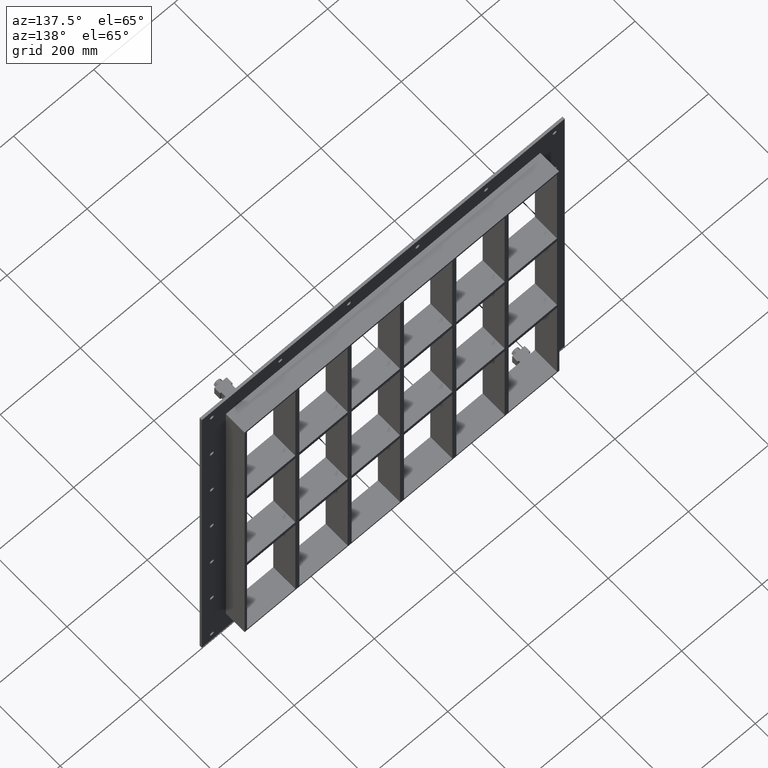
[diagram: clean part render]
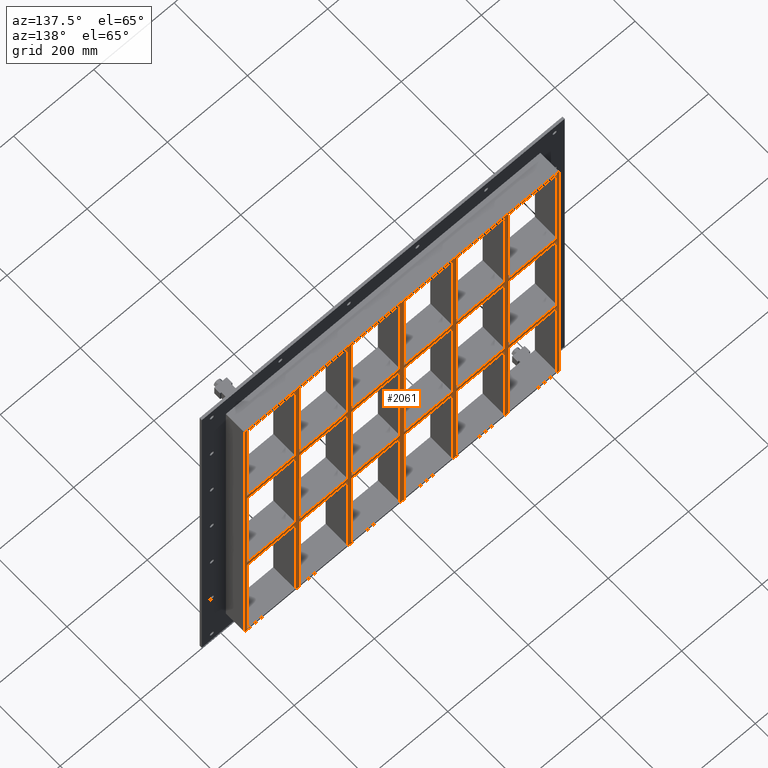
[diagram: same view with one face highlighted and labeled with its STEP entity id]
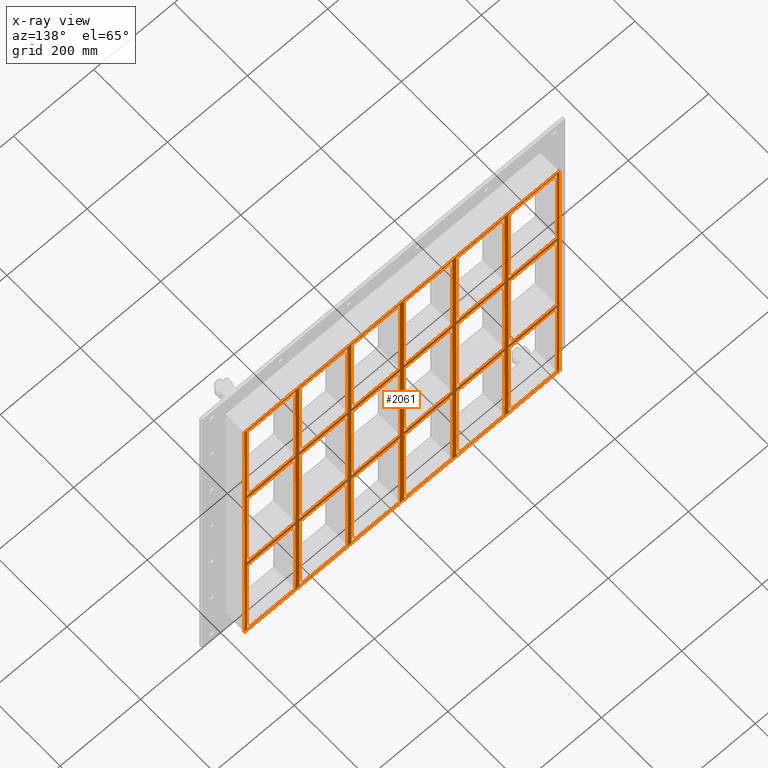
[diagram: x-ray of the same camera — body ghosted, the highlighted face saturated]
A machine part, auxiliary view. The second image highlights one B-rep face of the part: STEP entity #2061.
The next image is the same camera in x-ray: the body ghosted, the highlighted face saturated — about 0% of this face is hidden behind the body in this view.
In plain terms, the highlighted planar face has unit normal (0, 1, 0).
Its self-contained STEP definition (entity closure, byte-faithful):
#691=CARTESIAN_POINT('',(-266.00000000000017,57.0,138.99999999998855));
#692=VERTEX_POINT('',#691);
#707=CARTESIAN_POINT('',(-386.49999999999852,57.0,138.9999999999884));
#708=VERTEX_POINT('',#707);
#715=CARTESIAN_POINT('',(-266.00000000000023,57.0,138.99999999998852));
#716=DIRECTION('',(-1.0,0.0,0.0));
#717=VECTOR('',#716,120.49999999999829);
#718=LINE('',#715,#717);
#719=EDGE_CURVE('',#692,#708,#718,.T.);
#731=CARTESIAN_POINT('',(-135.50000000000017,57.0,138.99999999998863));
#732=VERTEX_POINT('',#731);
#747=CARTESIAN_POINT('',(-256.00000000000364,57.0,138.99999999998852));
#748=VERTEX_POINT('',#747);
#755=CARTESIAN_POINT('',(-135.50000000000023,57.0,138.99999999998863));
#756=DIRECTION('',(-1.0,0.0,0.0));
#757=VECTOR('',#756,120.50000000000341);
#758=LINE('',#755,#757);
#759=EDGE_CURVE('',#732,#748,#758,.T.);
#771=CARTESIAN_POINT('',(-5.000000000000213,57.0,138.99999999998875));
#772=VERTEX_POINT('',#771);
#787=CARTESIAN_POINT('',(-125.50000000000367,57.0,138.99999999998863));
#788=VERTEX_POINT('',#787);
#795=CARTESIAN_POINT('',(-5.000000000000227,57.0,138.99999999998875));
#796=DIRECTION('',(-1.0,0.0,0.0));
#797=VECTOR('',#796,120.50000000000341);
#798=LINE('',#795,#797);
#799=EDGE_CURVE('',#772,#788,#798,.T.);
#811=CARTESIAN_POINT('',(125.49999999999986,57.0,138.99999999998886));
#812=VERTEX_POINT('',#811);
#827=CARTESIAN_POINT('',(4.999999999996376,57.0,138.99999999998875));
#828=VERTEX_POINT('',#827);
#835=CARTESIAN_POINT('',(125.49999999999989,57.0,138.99999999998886));
#836=DIRECTION('',(-1.0,0.0,0.0));
#837=VECTOR('',#836,120.50000000000352);
#838=LINE('',#835,#837);
#839=EDGE_CURVE('',#812,#828,#838,.T.);
#849=CARTESIAN_POINT('',(265.99999999999642,57.0,138.99999999998897));
#850=VERTEX_POINT('',#849);
#859=CARTESIAN_POINT('',(386.49999999999636,57.0,138.99999999998909));
#860=VERTEX_POINT('',#859);
#861=CARTESIAN_POINT('',(386.49999999999636,57.0,138.99999999998909));
#862=DIRECTION('',(-1.0,0.0,0.0));
#863=VECTOR('',#862,120.49999999999994);
#864=LINE('',#861,#863);
#865=EDGE_CURVE('',#860,#850,#864,.T.);
#891=CARTESIAN_POINT('',(255.99999999999989,57.0,138.99999999998897));
#892=VERTEX_POINT('',#891);
#907=CARTESIAN_POINT('',(135.49999999999642,57.0,138.99999999998886));
#908=VERTEX_POINT('',#907);
#915=CARTESIAN_POINT('',(255.99999999999989,57.0,138.99999999998897));
#916=DIRECTION('',(-1.0,0.0,0.0));
#917=VECTOR('',#916,120.50000000000347);
#918=LINE('',#915,#917);
#919=EDGE_CURVE('',#892,#908,#918,.T.);
#929=CARTESIAN_POINT('',(-266.00000000000017,57.0,151.00000000000023));
#930=VERTEX_POINT('',#929);
#939=CARTESIAN_POINT('',(-386.49999999999852,57.0,151.00000000000023));
#940=VERTEX_POINT('',#939);
#941=CARTESIAN_POINT('',(-386.49999999999852,57.0,151.00000000000023));
#942=DIRECTION('',(1.0,0.0,0.0));
#943=VECTOR('',#942,120.49999999999829);
#944=LINE('',#941,#943);
#945=EDGE_CURVE('',#940,#930,#944,.T.);
#971=CARTESIAN_POINT('',(265.99999999999636,57.0,151.00000000000023));
#972=VERTEX_POINT('',#971);
#987=CARTESIAN_POINT('',(386.49999999999966,57.0,151.00000000000023));
#988=VERTEX_POINT('',#987);
#995=CARTESIAN_POINT('',(265.99999999999636,57.0,151.00000000000023));
#996=DIRECTION('',(1.0,0.0,0.0));
#997=VECTOR('',#996,120.5000000000033);
#998=LINE('',#995,#997);
#999=EDGE_CURVE('',#972,#988,#998,.T.);
#1009=CARTESIAN_POINT('',(-135.50000000000017,57.0,151.00000000000023));
#1010=VERTEX_POINT('',#1009);
#1019=CARTESIAN_POINT('',(-256.00000000000364,57.0,151.00000000000023));
#1020=VERTEX_POINT('',#1019);
#1021=CARTESIAN_POINT('',(-256.00000000000364,57.0,151.00000000000023));
#1022=DIRECTION('',(1.0,0.0,0.0));
#1023=VECTOR('',#1022,120.50000000000341);
#1024=LINE('',#1021,#1023);
#1025=EDGE_CURVE('',#1020,#1010,#1024,.T.);
#1049=CARTESIAN_POINT('',(-5.000000000000213,57.0,151.00000000000023));
#1050=VERTEX_POINT('',#1049);
#1059=CARTESIAN_POINT('',(-125.50000000000364,57.0,151.00000000000023));
#1060=VERTEX_POINT('',#1059);
#1061=CARTESIAN_POINT('',(-125.50000000000364,57.0,151.00000000000023));
#1062=DIRECTION('',(1.0,0.0,0.0));
#1063=VECTOR('',#1062,120.50000000000341);
#1064=LINE('',#1061,#1063);
#1065=EDGE_CURVE('',#1060,#1050,#1064,.T.);
#1089=CARTESIAN_POINT('',(125.49999999999983,57.0,151.00000000000023));
#1090=VERTEX_POINT('',#1089);
#1099=CARTESIAN_POINT('',(4.999999999996376,57.0,151.00000000000023));
#1100=VERTEX_POINT('',#1099);
#1101=CARTESIAN_POINT('',(4.999999999996362,57.0,151.00000000000023));
#1102=DIRECTION('',(1.0,0.0,0.0));
#1103=VECTOR('',#1102,120.50000000000341);
#1104=LINE('',#1101,#1103);
#1105=EDGE_CURVE('',#1100,#1090,#1104,.T.);
#1129=CARTESIAN_POINT('',(255.99999999999994,57.0,151.00000000000023));
#1130=VERTEX_POINT('',#1129);
#1139=CARTESIAN_POINT('',(135.49999999999642,57.0,151.00000000000023));
#1140=VERTEX_POINT('',#1139);
#1141=CARTESIAN_POINT('',(135.49999999999636,57.0,151.00000000000023));
#1142=DIRECTION('',(1.0,0.0,0.0));
#1143=VECTOR('',#1142,120.50000000000352);
#1144=LINE('',#1141,#1143);
#1145=EDGE_CURVE('',#1140,#1130,#1144,.T.);
#1170=CARTESIAN_POINT('',(-386.5,57.0,429.00000000000006));
#1171=VERTEX_POINT('',#1170);
#1172=CARTESIAN_POINT('',(-386.50000000000006,57.0,429.00000000000006));
#1173=DIRECTION('',(0.0,0.0,-1.0));
#1174=VECTOR('',#1173,277.99999999999989);
#1175=LINE('',#1172,#1174);
#1176=EDGE_CURVE('',#1171,#940,#1175,.T.);
#1201=CARTESIAN_POINT('',(386.49999999999966,57.0,-138.99999999999977));
#1202=VERTEX_POINT('',#1201);
#1203=CARTESIAN_POINT('',(386.50000000000011,57.0,-138.99999999999977));
#1204=DIRECTION('',(0.0,0.0,1.0));
#1205=VECTOR('',#1204,277.99999999998886);
#1206=LINE('',#1203,#1205);
#1207=EDGE_CURVE('',#1202,#860,#1206,.T.);
#1240=CARTESIAN_POINT('',(386.50000000000011,57.0,429.00000000000006));
#1241=VERTEX_POINT('',#1240);
#1248=CARTESIAN_POINT('',(386.50000000000011,57.0,151.00000000000023));
#1249=DIRECTION('',(0.0,0.0,1.0));
#1250=VECTOR('',#1249,277.99999999999983);
#1251=LINE('',#1248,#1250);
#1252=EDGE_CURVE('',#988,#1241,#1251,.T.);
#1271=CARTESIAN_POINT('',(255.99999999999983,57.0,429.00000000000006));
#1272=VERTEX_POINT('',#1271);
#1279=CARTESIAN_POINT('',(255.99999999999986,57.0,151.00000000000017));
#1280=DIRECTION('',(0.0,0.0,1.0));
#1281=VECTOR('',#1280,277.99999999999989);
#1282=LINE('',#1279,#1281);
#1283=EDGE_CURVE('',#1130,#1272,#1282,.T.);
#1294=CARTESIAN_POINT('',(265.99999999999642,57.0,429.00000000000006));
#1295=VERTEX_POINT('',#1294);
#1296=CARTESIAN_POINT('',(265.99999999999642,57.0,429.00000000000006));
#1297=DIRECTION('',(0.0,0.0,-1.0));
#1298=VECTOR('',#1297,277.99999999999983);
#1299=LINE('',#1296,#1298);
#1300=EDGE_CURVE('',#1295,#972,#1299,.T.);
#1333=CARTESIAN_POINT('',(125.49999999999983,57.0,429.00000000000006));
#1334=VERTEX_POINT('',#1333);
#1341=CARTESIAN_POINT('',(125.49999999999986,57.0,151.00000000000017));
#1342=DIRECTION('',(0.0,0.0,1.0));
#1343=VECTOR('',#1342,277.99999999999989);
#1344=LINE('',#1341,#1343);
#1345=EDGE_CURVE('',#1090,#1334,#1344,.T.);
#1356=CARTESIAN_POINT('',(135.49999999999642,57.0,429.00000000000006));
#1357=VERTEX_POINT('',#1356);
#1358=CARTESIAN_POINT('',(135.49999999999642,57.0,429.00000000000006));
#1359=DIRECTION('',(0.0,0.0,-1.0));
#1360=VECTOR('',#1359,277.99999999999983);
#1361=LINE('',#1358,#1360);
#1362=EDGE_CURVE('',#1357,#1140,#1361,.T.);
#1395=CARTESIAN_POINT('',(-5.000000000000213,57.0,429.00000000000006));
#1396=VERTEX_POINT('',#1395);
#1403=CARTESIAN_POINT('',(-5.00000000000019,57.0,151.00000000000017));
#1404=DIRECTION('',(0.0,0.0,1.0));
#1405=VECTOR('',#1404,277.99999999999989);
#1406=LINE('',#1403,#1405);
#1407=EDGE_CURVE('',#1050,#1396,#1406,.T.);
#1418=CARTESIAN_POINT('',(4.999999999996376,57.0,429.00000000000006));
#1419=VERTEX_POINT('',#1418);
#1420=CARTESIAN_POINT('',(4.999999999996376,57.0,429.00000000000006));
#1421=DIRECTION('',(0.0,0.0,-1.0));
#1422=VECTOR('',#1421,277.99999999999983);
#1423=LINE('',#1420,#1422);
#1424=EDGE_CURVE('',#1419,#1100,#1423,.T.);
#1457=CARTESIAN_POINT('',(-135.50000000000023,57.0,429.00000000000006));
#1458=VERTEX_POINT('',#1457);
#1465=CARTESIAN_POINT('',(-135.5000000000002,57.0,151.00000000000017));
#1466=DIRECTION('',(0.0,0.0,1.0));
#1467=VECTOR('',#1466,277.99999999999989);
#1468=LINE('',#1465,#1467);
#1469=EDGE_CURVE('',#1010,#1458,#1468,.T.);
#1480=CARTESIAN_POINT('',(-125.50000000000364,57.0,429.00000000000006));
#1481=VERTEX_POINT('',#1480);
#1482=CARTESIAN_POINT('',(-125.50000000000364,57.0,429.00000000000006));
#1483=DIRECTION('',(0.0,0.0,-1.0));
#1484=VECTOR('',#1483,277.99999999999983);
#1485=LINE('',#1482,#1484);
#1486=EDGE_CURVE('',#1481,#1060,#1485,.T.);
#1519=CARTESIAN_POINT('',(-266.00000000000023,57.0,429.00000000000006));
#1520=VERTEX_POINT('',#1519);
#1527=CARTESIAN_POINT('',(-266.00000000000023,57.0,151.00000000000017));
#1528=DIRECTION('',(0.0,0.0,1.0));
#1529=VECTOR('',#1528,277.99999999999989);
#1530=LINE('',#1527,#1529);
#1531=EDGE_CURVE('',#930,#1520,#1530,.T.);
#1542=CARTESIAN_POINT('',(-266.00000000000017,57.0,-138.99999999999977));
#1543=VERTEX_POINT('',#1542);
#1544=CARTESIAN_POINT('',(-266.00000000000017,57.0,-138.99999999999977));
#1545=DIRECTION('',(0.0,0.0,1.0));
#1546=VECTOR('',#1545,277.99999999998835);
#1547=LINE('',#1544,#1546);
#1548=EDGE_CURVE('',#1543,#692,#1547,.T.);
#1573=CARTESIAN_POINT('',(-256.00000000000364,57.0,429.00000000000006));
#1574=VERTEX_POINT('',#1573);
#1575=CARTESIAN_POINT('',(-256.00000000000364,57.0,429.00000000000006));
#1576=DIRECTION('',(0.0,0.0,-1.0));
#1577=VECTOR('',#1576,277.99999999999983);
#1578=LINE('',#1575,#1577);
#1579=EDGE_CURVE('',#1574,#1020,#1578,.T.);
#1598=CARTESIAN_POINT('',(2.903351E-014,57.0,-6.182366E-014));
#1599=DIRECTION('',(0.0,1.0,0.0));
#1600=DIRECTION('',(0.0,0.0,1.0));
#1601=AXIS2_PLACEMENT_3D('',#1598,#1599,#1600);
#1602=PLANE('',#1601);
#1603=CARTESIAN_POINT('',(-392.50000000000006,57.0,-433.00000000000011));
#1604=VERTEX_POINT('',#1603);
#1605=CARTESIAN_POINT('',(392.50000000000011,57.0,-433.00000000000011));
#1606=VERTEX_POINT('',#1605);
#1607=CARTESIAN_POINT('',(-392.50000000000006,57.0,-433.00000000000011));
#1608=DIRECTION('',(1.0,0.0,0.0));
#1609=VECTOR('',#1608,785.00000000000023);
#1610=LINE('',#1607,#1609);
#1611=EDGE_CURVE('',#1604,#1606,#1610,.T.);
#1612=ORIENTED_EDGE('',*,*,#1611,.F.);
#1613=CARTESIAN_POINT('',(-392.50000000000006,57.0,433.0));
#1614=VERTEX_POINT('',#1613);
#1615=CARTESIAN_POINT('',(-392.50000000000006,57.0,-433.00000000000011));
#1616=DIRECTION('',(0.0,0.0,1.0));
#1617=VECTOR('',#1616,866.00000000000011);
#1618=LINE('',#1615,#1617);
#1619=EDGE_CURVE('',#1604,#1614,#1618,.T.);
#1620=ORIENTED_EDGE('',*,*,#1619,.T.);
#1621=CARTESIAN_POINT('',(-390.50000000000006,57.0,435.0));
#1622=VERTEX_POINT('',#1621);
#1623=CARTESIAN_POINT('',(-390.50000000000006,57.0,433.0));
#1624=DIRECTION('',(0.0,-1.0,0.0));
#1625=DIRECTION('',(-0.707106781186548,0.0,0.707106781186548));
#1626=AXIS2_PLACEMENT_3D('',#1623,#1624,#1625);
#1627=CIRCLE('',#1626,2.0);
#1628=EDGE_CURVE('',#1622,#1614,#1627,.T.);
#1629=ORIENTED_EDGE('',*,*,#1628,.F.);
#1630=CARTESIAN_POINT('',(390.50000000000011,57.0,435.0));
#1631=VERTEX_POINT('',#1630);
#1632=CARTESIAN_POINT('',(-390.5,57.0,435.0));
#1633=DIRECTION('',(1.0,0.0,0.0));
#1634=VECTOR('',#1633,781.00000000000011);
#1635=LINE('',#1632,#1634);
#1636=EDGE_CURVE('',#1622,#1631,#1635,.T.);
#1637=ORIENTED_EDGE('',*,*,#1636,.T.);
#1638=CARTESIAN_POINT('',(392.50000000000011,57.0,433.0));
#1639=VERTEX_POINT('',#1638);
#1640=CARTESIAN_POINT('',(390.50000000000011,57.0,433.0));
#1641=DIRECTION('',(0.0,-1.0,0.0));
#1642=DIRECTION('',(0.707106781186548,0.0,0.707106781186548));
#1643=AXIS2_PLACEMENT_3D('',#1640,#1641,#1642);
#1644=CIRCLE('',#1643,2.0);
#1645=EDGE_CURVE('',#1639,#1631,#1644,.T.);
#1646=ORIENTED_EDGE('',*,*,#1645,.F.);
#1647=CARTESIAN_POINT('',(392.50000000000011,57.0,433.0));
#1648=DIRECTION('',(0.0,0.0,-1.0));
#1649=VECTOR('',#1648,866.00000000000011);
#1650=LINE('',#1647,#1649);
#1651=EDGE_CURVE('',#1639,#1606,#1650,.T.);
#1652=ORIENTED_EDGE('',*,*,#1651,.T.);
#1653=EDGE_LOOP('',(#1612,#1620,#1629,#1637,#1646,#1652));
#1654=FACE_OUTER_BOUND('',#1653,.T.);
#1655=CARTESIAN_POINT('',(-386.49999999999852,57.0,-138.99999999999977));
#1656=VERTEX_POINT('',#1655);
#1657=CARTESIAN_POINT('',(-386.50000000000006,57.0,138.99999999998835));
#1658=DIRECTION('',(0.0,0.0,-1.0));
#1659=VECTOR('',#1658,277.99999999998812);
#1660=LINE('',#1657,#1659);
#1661=EDGE_CURVE('',#708,#1656,#1660,.T.);
#1662=ORIENTED_EDGE('',*,*,#1661,.T.);
#1663=CARTESIAN_POINT('',(-386.49999999999852,57.0,-138.99999999999977));
#1664=DIRECTION('',(1.0,0.0,0.0));
#1665=VECTOR('',#1664,120.49999999999835);
#1666=LINE('',#1663,#1665);
#1667=EDGE_CURVE('',#1656,#1543,#1666,.T.);
#1668=ORIENTED_EDGE('',*,*,#1667,.T.);
#1669=ORIENTED_EDGE('',*,*,#1548,.T.);
#1670=ORIENTED_EDGE('',*,*,#719,.T.);
#1671=EDGE_LOOP('',(#1662,#1668,#1669,#1670));
#1672=FACE_BOUND('',#1671,.T.);
#1673=ORIENTED_EDGE('',*,*,#1252,.T.);
#1674=CARTESIAN_POINT('',(386.50000000000011,57.0,429.00000000000006));
#1675=DIRECTION('',(-1.0,0.0,0.0));
#1676=VECTOR('',#1675,120.50000000000375);
#1677=LINE('',#1674,#1676);
#1678=EDGE_CURVE('',#1241,#1295,#1677,.T.);
#1679=ORIENTED_EDGE('',*,*,#1678,.T.);
#1680=ORIENTED_EDGE('',*,*,#1300,.T.);
#1681=ORIENTED_EDGE('',*,*,#999,.T.);
#1682=EDGE_LOOP('',(#1673,#1679,#1680,#1681));
#1683=FACE_BOUND('',#1682,.T.);
#1684=ORIENTED_EDGE('',*,*,#1283,.T.);
#1685=CARTESIAN_POINT('',(255.9999999999998,57.0,429.00000000000006));
#1686=DIRECTION('',(-1.0,0.0,0.0));
#1687=VECTOR('',#1686,120.50000000000335);
#1688=LINE('',#1685,#1687);
#1689=EDGE_CURVE('',#1272,#1357,#1688,.T.);
#1690=ORIENTED_EDGE('',*,*,#1689,.T.);
#1691=ORIENTED_EDGE('',*,*,#1362,.T.);
#1692=ORIENTED_EDGE('',*,*,#1145,.T.);
#1693=EDGE_LOOP('',(#1684,#1690,#1691,#1692));
#1694=FACE_BOUND('',#1693,.T.);
#1695=ORIENTED_EDGE('',*,*,#1345,.T.);
#1696=CARTESIAN_POINT('',(125.49999999999986,57.0,429.00000000000006));
#1697=DIRECTION('',(-1.0,0.0,0.0));
#1698=VECTOR('',#1697,120.50000000000347);
#1699=LINE('',#1696,#1698);
#1700=EDGE_CURVE('',#1334,#1419,#1699,.T.);
#1701=ORIENTED_EDGE('',*,*,#1700,.T.);
#1702=ORIENTED_EDGE('',*,*,#1424,.T.);
#1703=ORIENTED_EDGE('',*,*,#1105,.T.);
#1704=EDGE_LOOP('',(#1695,#1701,#1702,#1703));
#1705=FACE_BOUND('',#1704,.T.);
#1706=ORIENTED_EDGE('',*,*,#1407,.T.);
#1707=CARTESIAN_POINT('',(-5.000000000000199,57.0,429.00000000000006));
#1708=DIRECTION('',(-1.0,0.0,0.0));
#1709=VECTOR('',#1708,120.50000000000344);
#1710=LINE('',#1707,#1709);
#1711=EDGE_CURVE('',#1396,#1481,#1710,.T.);
#1712=ORIENTED_EDGE('',*,*,#1711,.T.);
#1713=ORIENTED_EDGE('',*,*,#1486,.T.);
#1714=ORIENTED_EDGE('',*,*,#1065,.T.);
#1715=EDGE_LOOP('',(#1706,#1712,#1713,#1714));
#1716=FACE_BOUND('',#1715,.T.);
#1717=ORIENTED_EDGE('',*,*,#1469,.T.);
#1718=CARTESIAN_POINT('',(-135.50000000000023,57.0,429.00000000000006));
#1719=DIRECTION('',(-1.0,0.0,0.0));
#1720=VECTOR('',#1719,120.50000000000341);
#1721=LINE('',#1718,#1720);
#1722=EDGE_CURVE('',#1458,#1574,#1721,.T.);
#1723=ORIENTED_EDGE('',*,*,#1722,.T.);
#1724=ORIENTED_EDGE('',*,*,#1579,.T.);
#1725=ORIENTED_EDGE('',*,*,#1025,.T.);
#1726=EDGE_LOOP('',(#1717,#1723,#1724,#1725));
#1727=FACE_BOUND('',#1726,.T.);
#1728=ORIENTED_EDGE('',*,*,#865,.T.);
#1729=CARTESIAN_POINT('',(265.99999999999642,57.0,-138.99999999999977));
#1730=VERTEX_POINT('',#1729);
#1731=CARTESIAN_POINT('',(265.99999999999642,57.0,138.99999999998897));
#1732=DIRECTION('',(0.0,0.0,-1.0));
#1733=VECTOR('',#1732,277.99999999998869);
#1734=LINE('',#1731,#1733);
#1735=EDGE_CURVE('',#850,#1730,#1734,.T.);
#1736=ORIENTED_EDGE('',*,*,#1735,.T.);
#1737=CARTESIAN_POINT('',(265.99999999999636,57.0,-138.99999999999977));
#1738=DIRECTION('',(1.0,0.0,0.0));
#1739=VECTOR('',#1738,120.5000000000033);
#1740=LINE('',#1737,#1739);
#1741=EDGE_CURVE('',#1730,#1202,#1740,.T.);
#1742=ORIENTED_EDGE('',*,*,#1741,.T.);
#1743=ORIENTED_EDGE('',*,*,#1207,.T.);
#1744=EDGE_LOOP('',(#1728,#1736,#1742,#1743));
#1745=FACE_BOUND('',#1744,.T.);
#1746=ORIENTED_EDGE('',*,*,#919,.T.);
#1747=CARTESIAN_POINT('',(135.49999999999642,57.0,-138.99999999999977));
#1748=VERTEX_POINT('',#1747);
#1749=CARTESIAN_POINT('',(135.49999999999642,57.0,138.99999999998886));
#1750=DIRECTION('',(0.0,0.0,-1.0));
#1751=VECTOR('',#1750,277.99999999998857);
#1752=LINE('',#1749,#1751);
#1753=EDGE_CURVE('',#908,#1748,#1752,.T.);
#1754=ORIENTED_EDGE('',*,*,#1753,.T.);
#1755=CARTESIAN_POINT('',(255.99999999999989,57.0,-138.99999999999977));
#1756=VERTEX_POINT('',#1755);
#1757=CARTESIAN_POINT('',(135.49999999999636,57.0,-138.99999999999977));
#1758=DIRECTION('',(1.0,0.0,0.0));
#1759=VECTOR('',#1758,120.50000000000341);
#1760=LINE('',#1757,#1759);
#1761=EDGE_CURVE('',#1748,#1756,#1760,.T.);
#1762=ORIENTED_EDGE('',*,*,#1761,.T.);
#1763=CARTESIAN_POINT('',(255.99999999999989,57.0,-138.99999999999977));
#1764=DIRECTION('',(0.0,0.0,1.0));
#1765=VECTOR('',#1764,277.9999999999888);
#1766=LINE('',#1763,#1765);
#1767=EDGE_CURVE('',#1756,#892,#1766,.T.);
#1768=ORIENTED_EDGE('',*,*,#1767,.T.);
#1769=EDGE_LOOP('',(#1746,#1754,#1762,#1768));
#1770=FACE_BOUND('',#1769,.T.);
#1771=ORIENTED_EDGE('',*,*,#839,.T.);
#1772=CARTESIAN_POINT('',(4.999999999996376,57.0,-138.99999999999977));
#1773=VERTEX_POINT('',#1772);
#1774=CARTESIAN_POINT('',(4.999999999996376,57.0,138.99999999998875));
#1775=DIRECTION('',(0.0,0.0,-1.0));
#1776=VECTOR('',#1775,277.99999999998846);
#1777=LINE('',#1774,#1776);
#1778=EDGE_CURVE('',#828,#1773,#1777,.T.);
#1779=ORIENTED_EDGE('',*,*,#1778,.T.);
#1780=CARTESIAN_POINT('',(125.49999999999989,57.0,-138.99999999999977));
#1781=VERTEX_POINT('',#1780);
#1782=CARTESIAN_POINT('',(4.999999999996362,57.0,-138.99999999999977));
#1783=DIRECTION('',(1.0,0.0,0.0));
#1784=VECTOR('',#1783,120.50000000000352);
#1785=LINE('',#1782,#1784);
#1786=EDGE_CURVE('',#1773,#1781,#1785,.T.);
#1787=ORIENTED_EDGE('',*,*,#1786,.T.);
#1788=CARTESIAN_POINT('',(125.49999999999987,57.0,-138.99999999999977));
#1789=DIRECTION('',(0.0,0.0,1.0));
#1790=VECTOR('',#1789,277.99999999998857);
#1791=LINE('',#1788,#1790);
#1792=EDGE_CURVE('',#1781,#812,#1791,.T.);
#1793=ORIENTED_EDGE('',*,*,#1792,.T.);
#1794=EDGE_LOOP('',(#1771,#1779,#1787,#1793));
#1795=FACE_BOUND('',#1794,.T.);
#1796=ORIENTED_EDGE('',*,*,#799,.T.);
#1797=CARTESIAN_POINT('',(-125.50000000000364,57.0,-138.99999999999977));
#1798=VERTEX_POINT('',#1797);
#1799=CARTESIAN_POINT('',(-125.50000000000364,57.0,138.99999999998863));
#1800=DIRECTION('',(0.0,0.0,-1.0));
#1801=VECTOR('',#1800,277.99999999998835);
#1802=LINE('',#1799,#1801);
#1803=EDGE_CURVE('',#788,#1798,#1802,.T.);
#1804=ORIENTED_EDGE('',*,*,#1803,.T.);
#1805=CARTESIAN_POINT('',(-5.000000000000167,57.0,-138.99999999999977));
#1806=VERTEX_POINT('',#1805);
#1807=CARTESIAN_POINT('',(-125.50000000000364,57.0,-138.99999999999977));
#1808=DIRECTION('',(1.0,0.0,0.0));
#1809=VECTOR('',#1808,120.50000000000347);
#1810=LINE('',#1807,#1809);
#1811=EDGE_CURVE('',#1798,#1806,#1810,.T.);
#1812=ORIENTED_EDGE('',*,*,#1811,.T.);
#1813=CARTESIAN_POINT('',(-5.000000000000166,57.0,-138.99999999999977));
#1814=DIRECTION('',(0.0,0.0,1.0));
#1815=VECTOR('',#1814,277.99999999998857);
#1816=LINE('',#1813,#1815);
#1817=EDGE_CURVE('',#1806,#772,#1816,.T.);
#1818=ORIENTED_EDGE('',*,*,#1817,.T.);
#1819=EDGE_LOOP('',(#1796,#1804,#1812,#1818));
#1820=FACE_BOUND('',#1819,.T.);
#1821=ORIENTED_EDGE('',*,*,#759,.T.);
#1822=CARTESIAN_POINT('',(-256.00000000000364,57.0,-138.99999999999977));
#1823=VERTEX_POINT('',#1822);
#1824=CARTESIAN_POINT('',(-256.00000000000364,57.0,138.99999999998852));
#1825=DIRECTION('',(0.0,0.0,-1.0));
#1826=VECTOR('',#1825,277.99999999998823);
#1827=LINE('',#1824,#1826);
#1828=EDGE_CURVE('',#748,#1823,#1827,.T.);
#1829=ORIENTED_EDGE('',*,*,#1828,.T.);
#1830=CARTESIAN_POINT('',(-135.50000000000017,57.0,-138.99999999999977));
#1831=VERTEX_POINT('',#1830);
#1832=CARTESIAN_POINT('',(-256.00000000000364,57.0,-138.99999999999977));
#1833=DIRECTION('',(1.0,0.0,0.0));
#1834=VECTOR('',#1833,120.50000000000341);
#1835=LINE('',#1832,#1834);
#1836=EDGE_CURVE('',#1823,#1831,#1835,.T.);
#1837=ORIENTED_EDGE('',*,*,#1836,.T.);
#1838=CARTESIAN_POINT('',(-135.50000000000017,57.0,-138.99999999999977));
#1839=DIRECTION('',(0.0,0.0,1.0));
#1840=VECTOR('',#1839,277.99999999998835);
#1841=LINE('',#1838,#1840);
#1842=EDGE_CURVE('',#1831,#732,#1841,.T.);
#1843=ORIENTED_EDGE('',*,*,#1842,.T.);
#1844=EDGE_LOOP('',(#1821,#1829,#1837,#1843));
#1845=FACE_BOUND('',#1844,.T.);
#1846=CARTESIAN_POINT('',(-386.49999999999852,57.0,-151.0000000000116));
#1847=VERTEX_POINT('',#1846);
#1848=CARTESIAN_POINT('',(-386.5,57.0,-429.00000000000006));
#1849=VERTEX_POINT('',#1848);
#1850=CARTESIAN_POINT('',(-386.50000000000006,57.0,-151.0000000000116));
#1851=DIRECTION('',(0.0,0.0,-1.0));
#1852=VECTOR('',#1851,277.99999999998846);
#1853=LINE('',#1850,#1852);
#1854=EDGE_CURVE('',#1847,#1849,#1853,.T.);
#1855=ORIENTED_EDGE('',*,*,#1854,.T.);
#1856=CARTESIAN_POINT('',(-266.00000000000017,57.0,-429.00000000000006));
#1857=VERTEX_POINT('',#1856);
#1858=CARTESIAN_POINT('',(-386.50000000000006,57.0,-429.00000000000006));
#1859=DIRECTION('',(1.0,0.0,0.0));
#1860=VECTOR('',#1859,120.49999999999989);
#1861=LINE('',#1858,#1860);
#1862=EDGE_CURVE('',#1849,#1857,#1861,.T.);
#1863=ORIENTED_EDGE('',*,*,#1862,.T.);
#1864=CARTESIAN_POINT('',(-266.00000000000023,57.0,-151.00000000001148));
#1865=VERTEX_POINT('',#1864);
#1866=CARTESIAN_POINT('',(-266.00000000000017,57.0,-429.00000000000006));
#1867=DIRECTION('',(0.0,0.0,1.0));
#1868=VECTOR('',#1867,277.99999999998857);
#1869=LINE('',#1866,#1868);
#1870=EDGE_CURVE('',#1857,#1865,#1869,.T.);
#1871=ORIENTED_EDGE('',*,*,#1870,.T.);
#1872=CARTESIAN_POINT('',(-266.00000000000023,57.0,-151.00000000001148));
#1873=DIRECTION('',(-1.0,0.0,0.0));
#1874=VECTOR('',#1873,120.49999999999829);
#1875=LINE('',#1872,#1874);
#1876=EDGE_CURVE('',#1865,#1847,#1875,.T.);
#1877=ORIENTED_EDGE('',*,*,#1876,.T.);
#1878=EDGE_LOOP('',(#1855,#1863,#1871,#1877));
#1879=FACE_BOUND('',#1878,.T.);
#1880=CARTESIAN_POINT('',(-135.50000000000014,57.0,-429.00000000000006));
#1881=VERTEX_POINT('',#1880);
#1882=CARTESIAN_POINT('',(-135.50000000000017,57.0,-151.00000000001137));
#1883=VERTEX_POINT('',#1882);
#1884=CARTESIAN_POINT('',(-135.50000000000014,57.0,-429.00000000000006));
#1885=DIRECTION('',(0.0,0.0,1.0));
#1886=VECTOR('',#1885,277.99999999998869);
#1887=LINE('',#1884,#1886);
#1888=EDGE_CURVE('',#1881,#1883,#1887,.T.);
#1889=ORIENTED_EDGE('',*,*,#1888,.T.);
#1890=CARTESIAN_POINT('',(-256.00000000000364,57.0,-151.00000000001148));
#1891=VERTEX_POINT('',#1890);
#1892=CARTESIAN_POINT('',(-135.50000000000023,57.0,-151.00000000001137));
#1893=DIRECTION('',(-1.0,0.0,0.0));
#1894=VECTOR('',#1893,120.50000000000341);
#1895=LINE('',#1892,#1894);
#1896=EDGE_CURVE('',#1883,#1891,#1895,.T.);
#1897=ORIENTED_EDGE('',*,*,#1896,.T.);
#1898=CARTESIAN_POINT('',(-256.00000000000364,57.0,-428.99999999998187));
#1899=VERTEX_POINT('',#1898);
#1900=CARTESIAN_POINT('',(-256.00000000000364,57.0,-151.00000000001143));
#1901=DIRECTION('',(0.0,0.0,-1.0));
#1902=VECTOR('',#1901,277.99999999997044);
#1903=LINE('',#1900,#1902);
#1904=EDGE_CURVE('',#1891,#1899,#1903,.T.);
#1905=ORIENTED_EDGE('',*,*,#1904,.T.);
#1906=CARTESIAN_POINT('',(-256.00000000000358,57.0,-429.00000000000006));
#1907=DIRECTION('',(1.0,0.0,0.0));
#1908=VECTOR('',#1907,120.50000000000341);
#1909=LINE('',#1906,#1908);
#1910=EDGE_CURVE('',#1899,#1881,#1909,.T.);
#1911=ORIENTED_EDGE('',*,*,#1910,.T.);
#1912=EDGE_LOOP('',(#1889,#1897,#1905,#1911));
#1913=FACE_BOUND('',#1912,.T.);
#1914=CARTESIAN_POINT('',(-5.000000000000142,57.0,-429.00000000000006));
#1915=VERTEX_POINT('',#1914);
#1916=CARTESIAN_POINT('',(-5.000000000000165,57.0,-151.00000000001128));
#1917=VERTEX_POINT('',#1916);
#1918=CARTESIAN_POINT('',(-5.000000000000142,57.0,-429.00000000000006));
#1919=DIRECTION('',(0.0,0.0,1.0));
#1920=VECTOR('',#1919,277.9999999999888);
#1921=LINE('',#1918,#1920);
#1922=EDGE_CURVE('',#1915,#1917,#1921,.T.);
#1923=ORIENTED_EDGE('',*,*,#1922,.T.);
#1924=CARTESIAN_POINT('',(-125.50000000000364,57.0,-151.00000000001131));
#1925=VERTEX_POINT('',#1924);
#1926=CARTESIAN_POINT('',(-5.000000000000114,57.0,-151.00000000001125));
#1927=DIRECTION('',(-1.0,0.0,0.0));
#1928=VECTOR('',#1927,120.50000000000352);
#1929=LINE('',#1926,#1928);
#1930=EDGE_CURVE('',#1917,#1925,#1929,.T.);
#1931=ORIENTED_EDGE('',*,*,#1930,.T.);
#1932=CARTESIAN_POINT('',(-125.50000000000364,57.0,-428.99999999998187));
#1933=VERTEX_POINT('',#1932);
#1934=CARTESIAN_POINT('',(-125.50000000000364,57.0,-151.00000000001131));
#1935=DIRECTION('',(0.0,0.0,-1.0));
#1936=VECTOR('',#1935,277.99999999997056);
#1937=LINE('',#1934,#1936);
#1938=EDGE_CURVE('',#1925,#1933,#1937,.T.);
#1939=ORIENTED_EDGE('',*,*,#1938,.T.);
#1940=CARTESIAN_POINT('',(-125.50000000000364,57.0,-429.00000000000006));
#1941=DIRECTION('',(1.0,0.0,0.0));
#1942=VECTOR('',#1941,120.5000000000035);
#1943=LINE('',#1940,#1942);
#1944=EDGE_CURVE('',#1933,#1915,#1943,.T.);
#1945=ORIENTED_EDGE('',*,*,#1944,.T.);
#1946=EDGE_LOOP('',(#1923,#1931,#1939,#1945));
#1947=FACE_BOUND('',#1946,.T.);
#1948=CARTESIAN_POINT('',(125.4999999999999,57.0,-429.00000000000006));
#1949=VERTEX_POINT('',#1948);
#1950=CARTESIAN_POINT('',(125.49999999999989,57.0,-151.00000000001114));
#1951=VERTEX_POINT('',#1950);
#1952=CARTESIAN_POINT('',(125.4999999999999,57.0,-429.00000000000006));
#1953=DIRECTION('',(0.0,0.0,1.0));
#1954=VECTOR('',#1953,277.99999999998892);
#1955=LINE('',#1952,#1954);
#1956=EDGE_CURVE('',#1949,#1951,#1955,.T.);
#1957=ORIENTED_EDGE('',*,*,#1956,.T.);
#1958=CARTESIAN_POINT('',(4.999999999996376,57.0,-151.00000000001125));
#1959=VERTEX_POINT('',#1958);
#1960=CARTESIAN_POINT('',(125.49999999999989,57.0,-151.00000000001114));
#1961=DIRECTION('',(-1.0,0.0,0.0));
#1962=VECTOR('',#1961,120.50000000000352);
#1963=LINE('',#1960,#1962);
#1964=EDGE_CURVE('',#1951,#1959,#1963,.T.);
#1965=ORIENTED_EDGE('',*,*,#1964,.T.);
#1966=CARTESIAN_POINT('',(4.999999999996376,57.0,-428.99999999998187));
#1967=VERTEX_POINT('',#1966);
#1968=CARTESIAN_POINT('',(4.999999999996376,57.0,-151.0000000000112));
#1969=DIRECTION('',(0.0,0.0,-1.0));
#1970=VECTOR('',#1969,277.99999999997067);
#1971=LINE('',#1968,#1970);
#1972=EDGE_CURVE('',#1959,#1967,#1971,.T.);
#1973=ORIENTED_EDGE('',*,*,#1972,.T.);
#1974=CARTESIAN_POINT('',(4.999999999996362,57.0,-429.00000000000006));
#1975=DIRECTION('',(1.0,0.0,0.0));
#1976=VECTOR('',#1975,120.50000000000352);
#1977=LINE('',#1974,#1976);
#1978=EDGE_CURVE('',#1967,#1949,#1977,.T.);
#1979=ORIENTED_EDGE('',*,*,#1978,.T.);
#1980=EDGE_LOOP('',(#1957,#1965,#1973,#1979));
#1981=FACE_BOUND('',#1980,.T.);
#1982=CARTESIAN_POINT('',(255.99999999999991,57.0,-429.00000000000006));
#1983=VERTEX_POINT('',#1982);
#1984=CARTESIAN_POINT('',(255.99999999999989,57.0,-151.00000000001103));
#1985=VERTEX_POINT('',#1984);
#1986=CARTESIAN_POINT('',(255.99999999999991,57.0,-429.00000000000006));
#1987=DIRECTION('',(0.0,0.0,1.0));
#1988=VECTOR('',#1987,277.99999999998903);
#1989=LINE('',#1986,#1988);
#1990=EDGE_CURVE('',#1983,#1985,#1989,.T.);
#1991=ORIENTED_EDGE('',*,*,#1990,.T.);
#1992=CARTESIAN_POINT('',(135.49999999999642,57.0,-151.00000000001108));
#1993=VERTEX_POINT('',#1992);
#1994=CARTESIAN_POINT('',(255.99999999999989,57.0,-151.00000000001103));
#1995=DIRECTION('',(-1.0,0.0,0.0));
#1996=VECTOR('',#1995,120.50000000000347);
#1997=LINE('',#1994,#1996);
#1998=EDGE_CURVE('',#1985,#1993,#1997,.T.);
#1999=ORIENTED_EDGE('',*,*,#1998,.T.);
#2000=CARTESIAN_POINT('',(135.49999999999642,57.0,-428.99999999998187));
#2001=VERTEX_POINT('',#2000);
#2002=CARTESIAN_POINT('',(135.49999999999642,57.0,-151.00000000001108));
#2003=DIRECTION('',(0.0,0.0,-1.0));
#2004=VECTOR('',#2003,277.99999999997078);
#2005=LINE('',#2002,#2004);
#2006=EDGE_CURVE('',#1993,#2001,#2005,.T.);
#2007=ORIENTED_EDGE('',*,*,#2006,.T.);
#2008=CARTESIAN_POINT('',(135.49999999999642,57.0,-429.00000000000006));
#2009=DIRECTION('',(1.0,0.0,0.0));
#2010=VECTOR('',#2009,120.50000000000347);
#2011=LINE('',#2008,#2010);
#2012=EDGE_CURVE('',#2001,#1983,#2011,.T.);
#2013=ORIENTED_EDGE('',*,*,#2012,.T.);
#2014=EDGE_LOOP('',(#1991,#1999,#2007,#2013));
#2015=FACE_BOUND('',#2014,.T.);
#2016=ORIENTED_EDGE('',*,*,#945,.T.);
#2017=ORIENTED_EDGE('',*,*,#1531,.T.);
#2018=CARTESIAN_POINT('',(-266.00000000000023,57.0,429.00000000000006));
#2019=DIRECTION('',(-1.0,0.0,0.0));
#2020=VECTOR('',#2019,120.49999999999977);
#2021=LINE('',#2018,#2020);
#2022=EDGE_CURVE('',#1520,#1171,#2021,.T.);
#2023=ORIENTED_EDGE('',*,*,#2022,.T.);
#2024=ORIENTED_EDGE('',*,*,#1176,.T.);
#2025=EDGE_LOOP('',(#2016,#2017,#2023,#2024));
#2026=FACE_BOUND('',#2025,.T.);
#2027=CARTESIAN_POINT('',(265.99999999999642,57.0,-428.99999999998187));
#2028=VERTEX_POINT('',#2027);
#2029=CARTESIAN_POINT('',(386.50000000000011,57.0,-429.00000000000006));
#2030=VERTEX_POINT('',#2029);
#2031=CARTESIAN_POINT('',(265.99999999999642,57.0,-429.00000000000006));
#2032=DIRECTION('',(1.0,0.0,0.0));
#2033=VECTOR('',#2032,120.50000000000369);
#2034=LINE('',#2031,#2033);
#2035=EDGE_CURVE('',#2028,#2030,#2034,.T.);
#2036=ORIENTED_EDGE('',*,*,#2035,.T.);
#2037=CARTESIAN_POINT('',(386.49999999999636,57.0,-151.00000000001091));
#2038=VERTEX_POINT('',#2037);
#2039=CARTESIAN_POINT('',(386.50000000000011,57.0,-429.00000000000011));
#2040=DIRECTION('',(0.0,0.0,1.0));
#2041=VECTOR('',#2040,277.9999999999892);
#2042=LINE('',#2039,#2041);
#2043=EDGE_CURVE('',#2030,#2038,#2042,.T.);
#2044=ORIENTED_EDGE('',*,*,#2043,.T.);
#2045=CARTESIAN_POINT('',(265.99999999999642,57.0,-151.00000000001097));
#2046=VERTEX_POINT('',#2045);
#2047=CARTESIAN_POINT('',(386.49999999999636,57.0,-151.00000000001091));
#2048=DIRECTION('',(-1.0,0.0,0.0));
#2049=VECTOR('',#2048,120.49999999999994);
#2050=LINE('',#2047,#2049);
#2051=EDGE_CURVE('',#2038,#2046,#2050,.T.);
#2052=ORIENTED_EDGE('',*,*,#2051,.T.);
#2053=CARTESIAN_POINT('',(265.99999999999642,57.0,-151.00000000001097));
#2054=DIRECTION('',(0.0,0.0,-1.0));
#2055=VECTOR('',#2054,277.9999999999709);
#2056=LINE('',#2053,#2055);
#2057=EDGE_CURVE('',#2046,#2028,#2056,.T.);
#2058=ORIENTED_EDGE('',*,*,#2057,.T.);
#2059=EDGE_LOOP('',(#2036,#2044,#2052,#2058));
#2060=FACE_BOUND('',#2059,.T.);
#2061=ADVANCED_FACE('',(#1654,#1672,#1683,#1694,#1705,#1716,#1727,#1745,#1770,#1795,#1820,#1845,#1879,#1913,#1947,#1981,#2015,#2026,#2060),#1602,.T.);